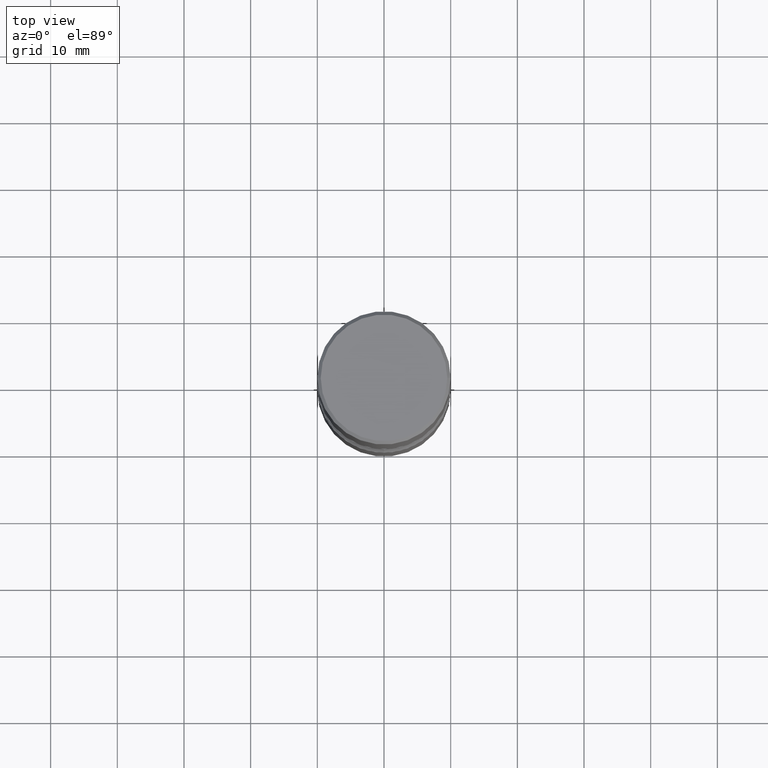
[diagram: clean part render]
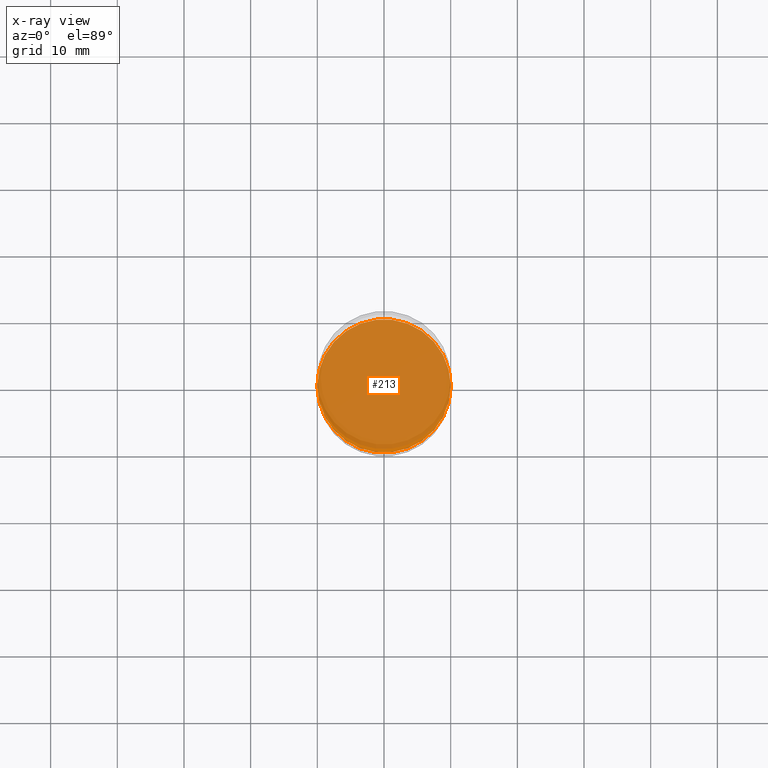
[diagram: x-ray — body ghosted, one internal face saturated and labeled with its STEP entity id]
A machine part, top view, then the same camera in x-ray: the body is ghosted and one INTERNAL B-rep face — a face not visible from any outside direction — is saturated and labeled: STEP entity #213.
In plain terms, the highlighted planar face has unit normal (0, -0, -1).
Its self-contained STEP definition (entity closure, byte-faithful):
#58 = AXIS2_PLACEMENT_3D ( 'NONE', #331, #511, #415 ) ;
#113 = DIRECTION ( 'NONE',  ( 1.000000000000000000, -6.982962677686269866E-15, 0.000000000000000000 ) ) ;
#116 = CARTESIAN_POINT ( 'NONE',  ( 6.835574407048695164E-29, -9.759388638334361670E-15, -2.795200000000000351 ) ) ;
#125 = CARTESIAN_POINT ( 'NONE',  ( 0.3937000000000002164, -1.250858104453944804E-14, -2.795200000000000351 ) ) ;
#126 = AXIS2_PLACEMENT_3D ( 'NONE', #509, #232, #153 ) ;
#128 = EDGE_CURVE ( 'NONE', #406, #556, #298, .T. ) ;
#152 = CARTESIAN_POINT ( 'NONE',  ( -0.3937000000000002164, -9.230222739426296007E-15, -2.795200000000000351 ) ) ;
#153 = DIRECTION ( 'NONE',  ( 1.000000000000000000, -6.982962677686269866E-15, 0.000000000000000000 ) ) ;
#154 = ORIENTED_EDGE ( 'NONE', *, *, #177, .T. ) ;
#177 = EDGE_CURVE ( 'NONE', #556, #406, #290, .T. ) ;
#213 = ADVANCED_FACE ( 'NONE', ( #373 ), #557, .F. ) ;
#232 = DIRECTION ( 'NONE',  ( -2.445468806185136597E-29, 3.491481338843145583E-15, 1.000000000000000000 ) ) ;
#290 = CIRCLE ( 'NONE', #126, 0.3937000000000002164 ) ;
#298 = CIRCLE ( 'NONE', #552, 0.3937000000000002164 ) ;
#318 = DIRECTION ( 'NONE',  ( -2.445468806185136597E-29, 3.491481338843145583E-15, 1.000000000000000000 ) ) ;
#331 = CARTESIAN_POINT ( 'NONE',  ( 6.835574407048695164E-29, -9.759388638334361670E-15, -2.795200000000000351 ) ) ;
#373 = FACE_OUTER_BOUND ( 'NONE', #447, .T. ) ;
#399 = ORIENTED_EDGE ( 'NONE', *, *, #128, .T. ) ;
#406 = VERTEX_POINT ( 'NONE', #152 ) ;
#415 = DIRECTION ( 'NONE',  ( -1.000000000000000000, 6.982962677686265922E-15, -4.876176775795935793E-29 ) ) ;
#447 = EDGE_LOOP ( 'NONE', ( #154, #399 ) ) ;
#509 = CARTESIAN_POINT ( 'NONE',  ( 6.835574407048695164E-29, -9.759388638334361670E-15, -2.795200000000000351 ) ) ;
#511 = DIRECTION ( 'NONE',  ( 2.438088387897960049E-29, -3.491481338843145188E-15, -1.000000000000000000 ) ) ;
#552 = AXIS2_PLACEMENT_3D ( 'NONE', #116, #318, #113 ) ;
#556 = VERTEX_POINT ( 'NONE', #125 ) ;
#557 = PLANE ( 'NONE',  #58 ) ;